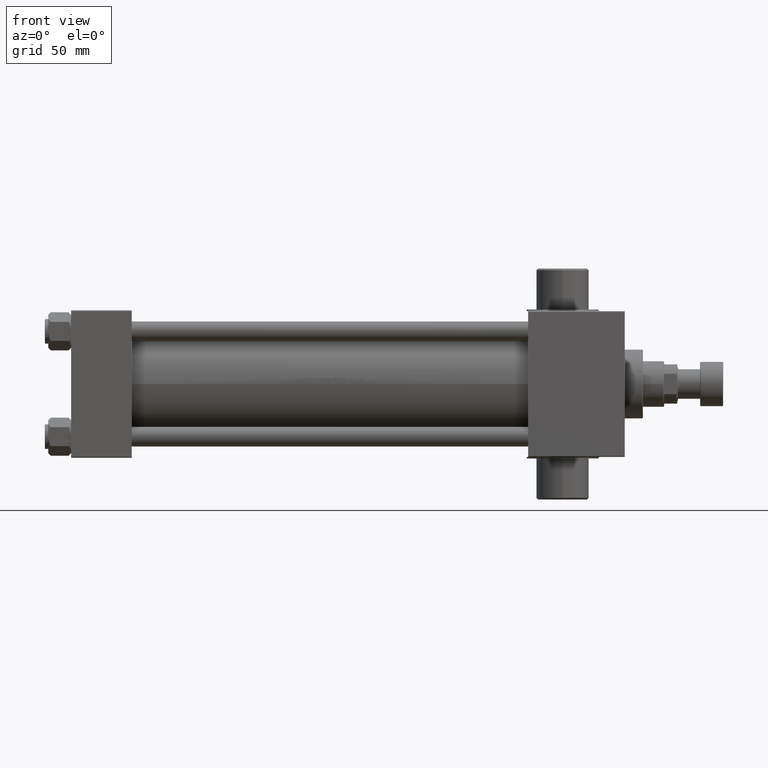
[diagram: clean part render]
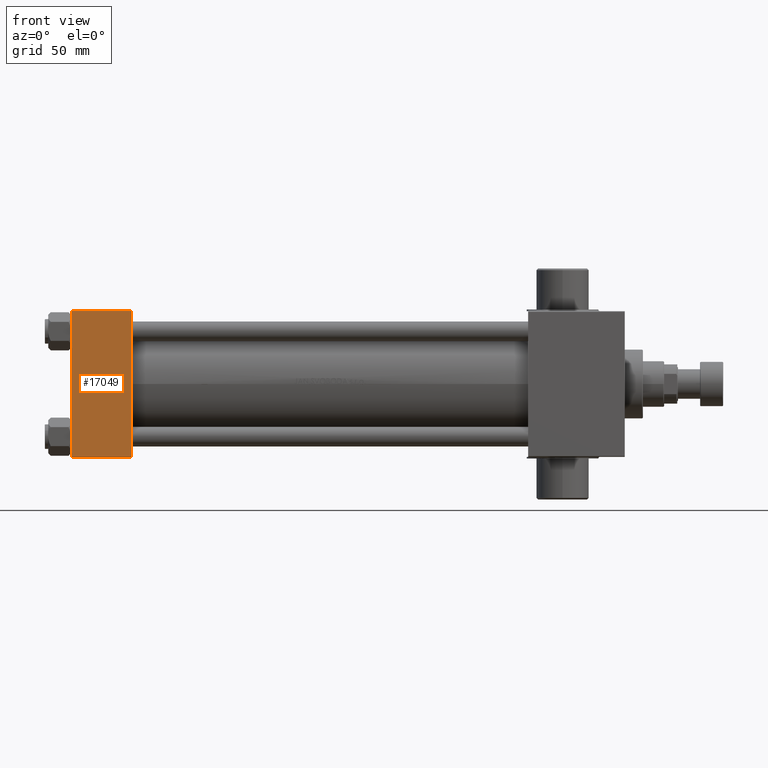
[diagram: same view with one face highlighted and labeled with its STEP entity id]
A machine part, front view. The second image highlights one B-rep face of the part: STEP entity #17049.
In plain terms, the highlighted planar face has unit normal (0, -1, -0).
Its self-contained STEP definition (entity closure, byte-faithful):
#942 = DIRECTION ( 'NONE',  ( 1.000000000000000000, 0.000000000000000000, 0.000000000000000000 ) ) ;
#1185 = DIRECTION ( 'NONE',  ( 0.000000000000000000, 1.541976423090495880E-16, -1.000000000000000000 ) ) ;
#4658 = ORIENTED_EDGE ( 'NONE', *, *, #22835, .T. ) ;
#5424 = CARTESIAN_POINT ( 'NONE',  ( 37.00000000000000000, 44.49999999999998579, -44.99999999999998579 ) ) ;
#5705 = VERTEX_POINT ( 'NONE', #6112 ) ;
#6112 = CARTESIAN_POINT ( 'NONE',  ( 0.000000000000000000, 44.49999999999998579, -44.99999999999998579 ) ) ;
#6261 = DIRECTION ( 'NONE',  ( 0.000000000000000000, -1.000000000000000000, -1.541976423090495633E-16 ) ) ;
#9598 = LINE ( 'NONE', #24376, #33939 ) ;
#10387 = VECTOR ( 'NONE', #942, 1000.000000000000000 ) ;
#12365 = PLANE ( 'NONE',  #26928 ) ;
#15469 = ORIENTED_EDGE ( 'NONE', *, *, #26711, .T. ) ;
#15715 = DIRECTION ( 'NONE',  ( 0.000000000000000000, 1.000000000000000000, 1.541976423090495880E-16 ) ) ;
#16035 = EDGE_LOOP ( 'NONE', ( #45662, #15469, #4658, #18261 ) ) ;
#16129 = VECTOR ( 'NONE', #17563, 1000.000000000000000 ) ;
#17049 = ADVANCED_FACE ( 'NONE', ( #26645 ), #12365, .T. ) ;
#17563 = DIRECTION ( 'NONE',  ( -1.000000000000000000, 0.000000000000000000, 0.000000000000000000 ) ) ;
#18261 = ORIENTED_EDGE ( 'NONE', *, *, #45827, .T. ) ;
#18836 = VERTEX_POINT ( 'NONE', #43564 ) ;
#19991 = VERTEX_POINT ( 'NONE', #29013 ) ;
#20423 = LINE ( 'NONE', #38974, #16129 ) ;
#22835 = EDGE_CURVE ( 'NONE', #22977, #18836, #9598, .T. ) ;
#22977 = VERTEX_POINT ( 'NONE', #32224 ) ;
#23530 = LINE ( 'NONE', #5424, #10387 ) ;
#24376 = CARTESIAN_POINT ( 'NONE',  ( 37.00000000000000000, 44.99999999999998579, -44.99999999999998579 ) ) ;
#26645 = FACE_OUTER_BOUND ( 'NONE', #16035, .T. ) ;
#26711 = EDGE_CURVE ( 'NONE', #5705, #22977, #23530, .T. ) ;
#26928 = AXIS2_PLACEMENT_3D ( 'NONE', #44723, #1185, #15715 ) ;
#29013 = CARTESIAN_POINT ( 'NONE',  ( 0.000000000000000000, -44.49999999999995737, -45.00000000000000000 ) ) ;
#32224 = CARTESIAN_POINT ( 'NONE',  ( 37.00000000000000000, 44.49999999999998579, -44.99999999999998579 ) ) ;
#33748 = CARTESIAN_POINT ( 'NONE',  ( 0.000000000000000000, 44.99999999999998579, -44.99999999999998579 ) ) ;
#33939 = VECTOR ( 'NONE', #6261, 1000.000000000000000 ) ;
#34057 = EDGE_CURVE ( 'NONE', #5705, #19991, #40881, .T. ) ;
#38974 = CARTESIAN_POINT ( 'NONE',  ( 0.000000000000000000, -44.49999999999998579, -45.00000000000000000 ) ) ;
#40410 = DIRECTION ( 'NONE',  ( 0.000000000000000000, -1.000000000000000000, -1.541976423090495633E-16 ) ) ;
#40881 = LINE ( 'NONE', #33748, #43131 ) ;
#43131 = VECTOR ( 'NONE', #40410, 1000.000000000000000 ) ;
#43564 = CARTESIAN_POINT ( 'NONE',  ( 37.00000000000000000, -44.49999999999995737, -45.00000000000000000 ) ) ;
#44723 = CARTESIAN_POINT ( 'NONE',  ( 37.00000000000000000, 44.99999999999998579, -44.99999999999998579 ) ) ;
#45662 = ORIENTED_EDGE ( 'NONE', *, *, #34057, .F. ) ;
#45827 = EDGE_CURVE ( 'NONE', #18836, #19991, #20423, .T. ) ;